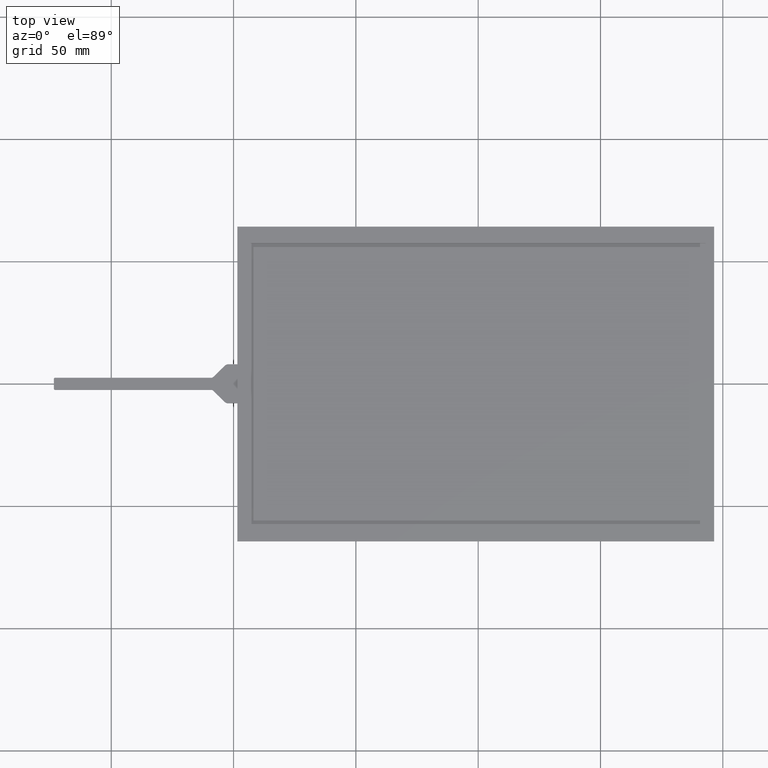
[diagram: clean part render]
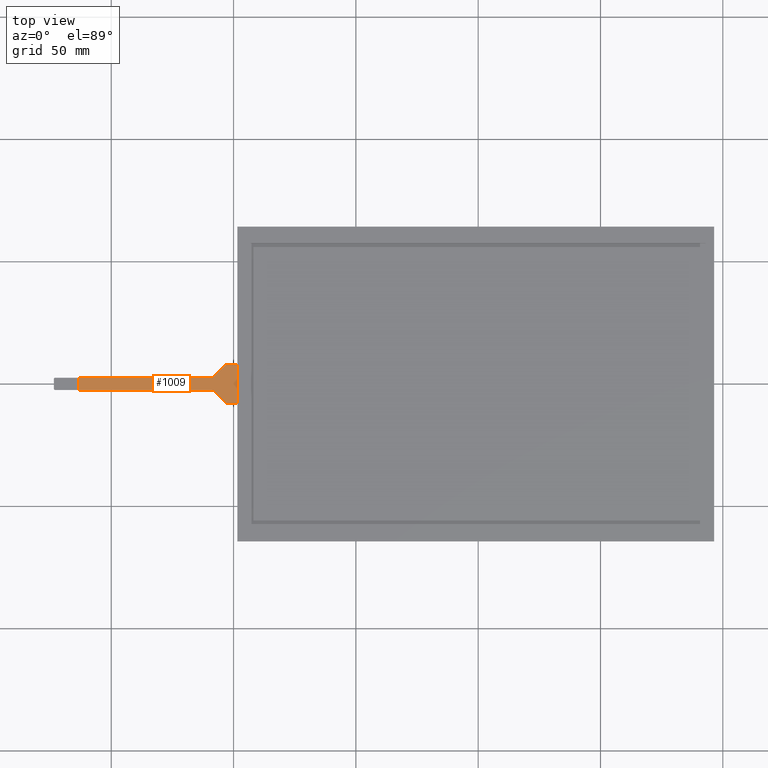
[diagram: same view with one face highlighted and labeled with its STEP entity id]
A machine part, top view. The second image highlights one B-rep face of the part: STEP entity #1009.
In plain terms, the highlighted planar face has unit normal (0, 0, 1).
Its self-contained STEP definition (entity closure, byte-faithful):
#77=PLANE('',#1092);
#128=FACE_OUTER_BOUND('',#179,.T.);
#179=EDGE_LOOP('',(#881,#882,#883,#884,#885,#886,#887,#888,#889,#890,#891,
#892));
#203=LINE('',#1378,#329);
#214=LINE('',#1408,#340);
#218=LINE('',#1421,#344);
#283=LINE('',#1558,#409);
#284=LINE('',#1560,#410);
#285=LINE('',#1563,#411);
#287=LINE('',#1566,#413);
#288=LINE('',#1568,#414);
#329=VECTOR('',#1123,10.);
#340=VECTOR('',#1148,10.);
#344=VECTOR('',#1162,10.);
#409=VECTOR('',#1281,10.);
#410=VECTOR('',#1284,10.);
#411=VECTOR('',#1287,10.);
#413=VECTOR('',#1291,10.);
#414=VECTOR('',#1294,10.);
#452=CIRCLE('',#1048,2.);
#456=CIRCLE('',#1055,2.);
#457=CIRCLE('',#1058,1.);
#458=CIRCLE('',#1060,1.);
#465=VERTEX_POINT('',#1368);
#466=VERTEX_POINT('',#1370);
#468=VERTEX_POINT('',#1376);
#478=VERTEX_POINT('',#1400);
#479=VERTEX_POINT('',#1402);
#480=VERTEX_POINT('',#1406);
#481=VERTEX_POINT('',#1410);
#482=VERTEX_POINT('',#1414);
#483=VERTEX_POINT('',#1415);
#484=VERTEX_POINT('',#1420);
#529=VERTEX_POINT('',#1556);
#530=VERTEX_POINT('',#1562);
#557=EDGE_CURVE('',#465,#466,#452,.T.);
#561=EDGE_CURVE('',#465,#468,#203,.T.);
#573=EDGE_CURVE('',#478,#479,#456,.T.);
#576=EDGE_CURVE('',#478,#480,#214,.T.);
#577=EDGE_CURVE('',#481,#468,#457,.T.);
#579=EDGE_CURVE('',#482,#483,#458,.T.);
#582=EDGE_CURVE('',#484,#483,#218,.T.);
#651=EDGE_CURVE('',#481,#529,#283,.T.);
#652=EDGE_CURVE('',#529,#484,#284,.T.);
#653=EDGE_CURVE('',#530,#466,#285,.T.);
#655=EDGE_CURVE('',#482,#479,#287,.T.);
#656=EDGE_CURVE('',#530,#480,#288,.T.);
#881=ORIENTED_EDGE('',*,*,#557,.F.);
#882=ORIENTED_EDGE('',*,*,#561,.T.);
#883=ORIENTED_EDGE('',*,*,#577,.F.);
#884=ORIENTED_EDGE('',*,*,#651,.T.);
#885=ORIENTED_EDGE('',*,*,#652,.T.);
#886=ORIENTED_EDGE('',*,*,#582,.T.);
#887=ORIENTED_EDGE('',*,*,#579,.F.);
#888=ORIENTED_EDGE('',*,*,#655,.T.);
#889=ORIENTED_EDGE('',*,*,#573,.F.);
#890=ORIENTED_EDGE('',*,*,#576,.T.);
#891=ORIENTED_EDGE('',*,*,#656,.F.);
#892=ORIENTED_EDGE('',*,*,#653,.T.);
#1009=ADVANCED_FACE('',(#128),#77,.T.);
#1048=AXIS2_PLACEMENT_3D('',#1371,#1116,#1117);
#1055=AXIS2_PLACEMENT_3D('',#1403,#1142,#1143);
#1058=AXIS2_PLACEMENT_3D('',#1411,#1151,#1152);
#1060=AXIS2_PLACEMENT_3D('',#1416,#1156,#1157);
#1092=AXIS2_PLACEMENT_3D('',#1567,#1292,#1293);
#1116=DIRECTION('center_axis',(0.,0.,-1.));
#1117=DIRECTION('ref_axis',(-0.379345698749704,0.925255013950262,0.));
#1123=DIRECTION('',(-0.712193681680198,-0.701983019577258,0.));
#1142=DIRECTION('center_axis',(0.,0.,-1.));
#1143=DIRECTION('ref_axis',(-0.379345698749704,-0.925255013950262,0.));
#1148=DIRECTION('',(1.,-3.64405806769745E-15,0.));
#1151=DIRECTION('center_axis',(0.,0.,1.));
#1152=DIRECTION('ref_axis',(0.379345698749697,-0.925255013950265,0.));
#1156=DIRECTION('center_axis',(0.,0.,1.));
#1157=DIRECTION('ref_axis',(0.379345698749697,0.925255013950265,0.));
#1162=DIRECTION('',(1.,2.22558200772969E-16,0.));
#1281=DIRECTION('',(-1.,0.,0.));
#1284=DIRECTION('',(0.,-1.,0.));
#1287=DIRECTION('',(-1.,0.,0.));
#1291=DIRECTION('',(0.712193681680199,-0.701983019577257,0.));
#1292=DIRECTION('center_axis',(0.,0.,1.));
#1293=DIRECTION('ref_axis',(1.,0.,0.));
#1294=DIRECTION('',(1.38130391866271E-16,-1.,0.));
#1368=CARTESIAN_POINT('',(-103.603985184082,7.42438736336038,-0.2));
#1370=CARTESIAN_POINT('',(-102.200019144927,7.99999999999998,-0.2));
#1371=CARTESIAN_POINT('Origin',(-102.200019144927,5.99999999999999,-0.2));
#1376=CARTESIAN_POINT('',(-108.308007407959,2.78780631831978,-0.2));
#1378=CARTESIAN_POINT('',(-103.02,7.99999999999998,-0.2));
#1400=CARTESIAN_POINT('',(-102.200019144927,-8.,-0.2));
#1402=CARTESIAN_POINT('',(-103.603985184082,-7.4243873633604,-0.2));
#1403=CARTESIAN_POINT('Origin',(-102.200019144927,-6.,-0.2));
#1406=CARTESIAN_POINT('',(-98.45,-8.00000000000002,-0.2));
#1408=CARTESIAN_POINT('',(-103.02,-8.,-0.2));
#1410=CARTESIAN_POINT('',(-109.009990427536,2.49999999999998,-0.2));
#1411=CARTESIAN_POINT('Origin',(-109.009990427536,3.49999999999998,-0.2));
#1414=CARTESIAN_POINT('',(-108.308007407959,-2.78780631831981,-0.2));
#1415=CARTESIAN_POINT('',(-109.009990427536,-2.50000000000001,-0.2));
#1416=CARTESIAN_POINT('Origin',(-109.009990427536,-3.50000000000001,-0.2));
#1420=CARTESIAN_POINT('',(-163.45,-2.50000000000002,-0.2));
#1421=CARTESIAN_POINT('',(-173.45,-2.50000000000002,-0.2));
#1556=CARTESIAN_POINT('',(-163.45,2.49999999999997,-0.2));
#1558=CARTESIAN_POINT('',(-108.6,2.49999999999998,-0.2));
#1560=CARTESIAN_POINT('',(-163.45,-1.25000000000002,-0.2));
#1562=CARTESIAN_POINT('',(-98.45,7.99999999999998,-0.2));
#1563=CARTESIAN_POINT('',(-98.45,7.99999999999998,-0.2));
#1566=CARTESIAN_POINT('',(-108.6,-2.50000000000001,-0.2));
#1567=CARTESIAN_POINT('Origin',(-135.95,-1.55431223447522E-14,-0.2));
#1568=CARTESIAN_POINT('',(-98.45,-32.175,-0.2));